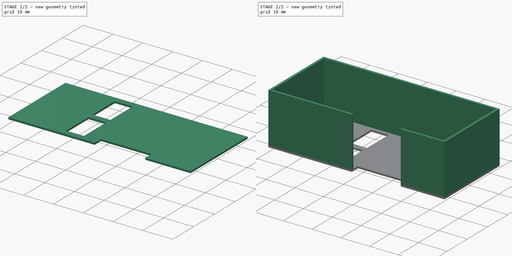
[diagram: build sequence overview — one tinted view per stage of 2, left to right]
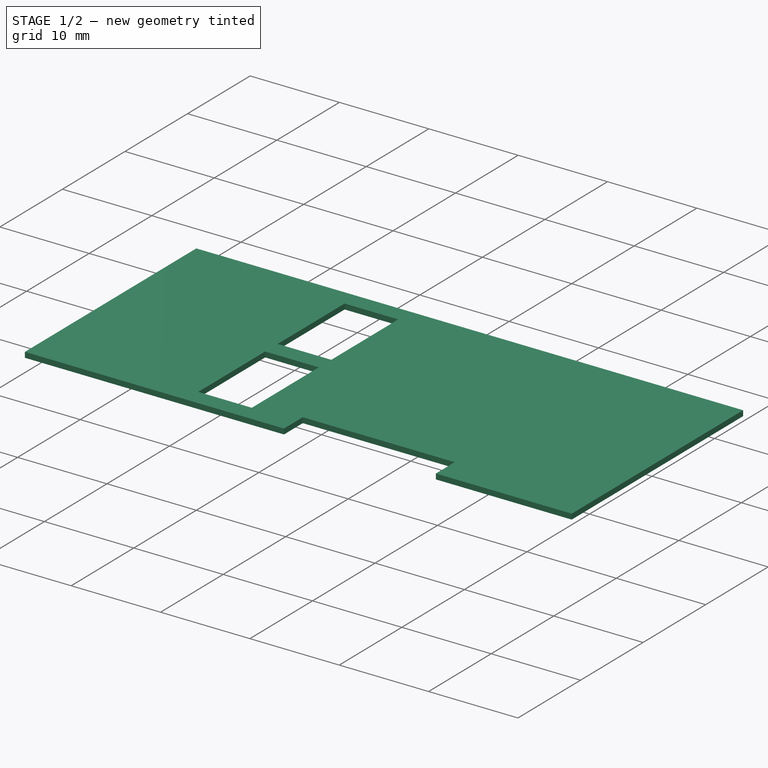
[diagram: stage 1 of 2 — iso view after this stage's code; geometry added in this stage tinted green]
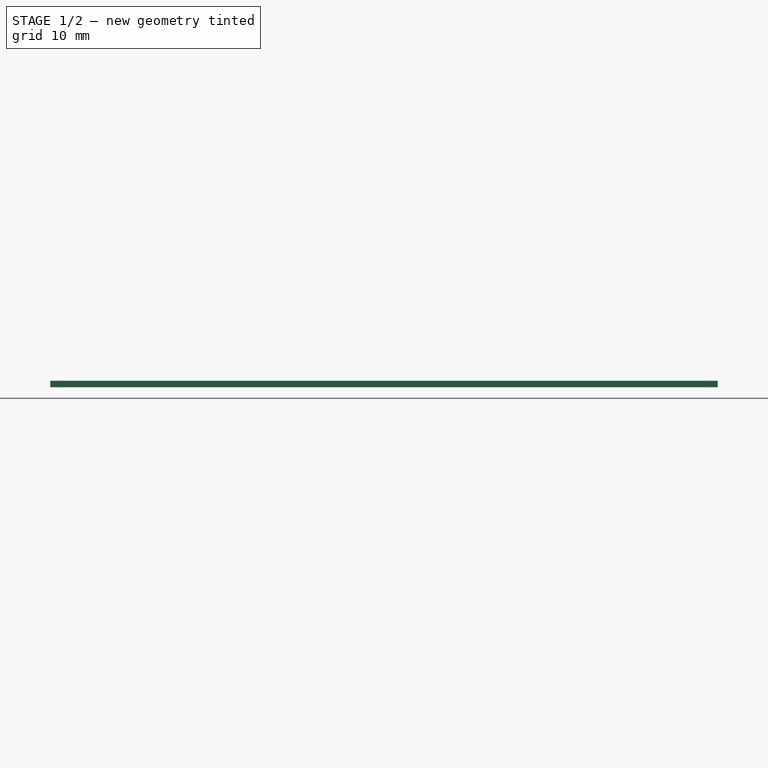
[diagram: stage 1 of 2 — front view after this stage's code; geometry added in this stage tinted green]
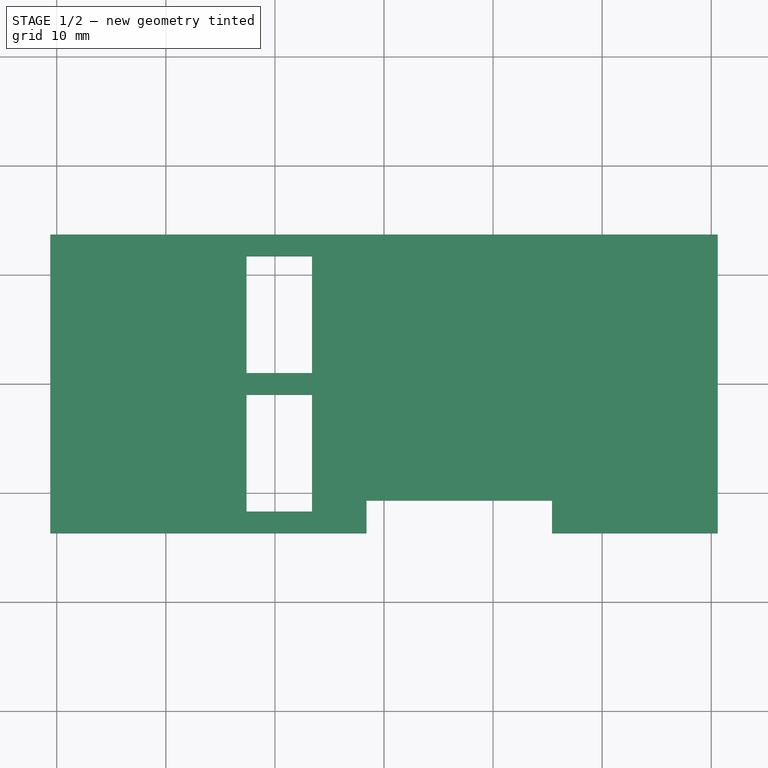
[diagram: stage 1 of 2 — top view after this stage's code; geometry added in this stage tinted green]
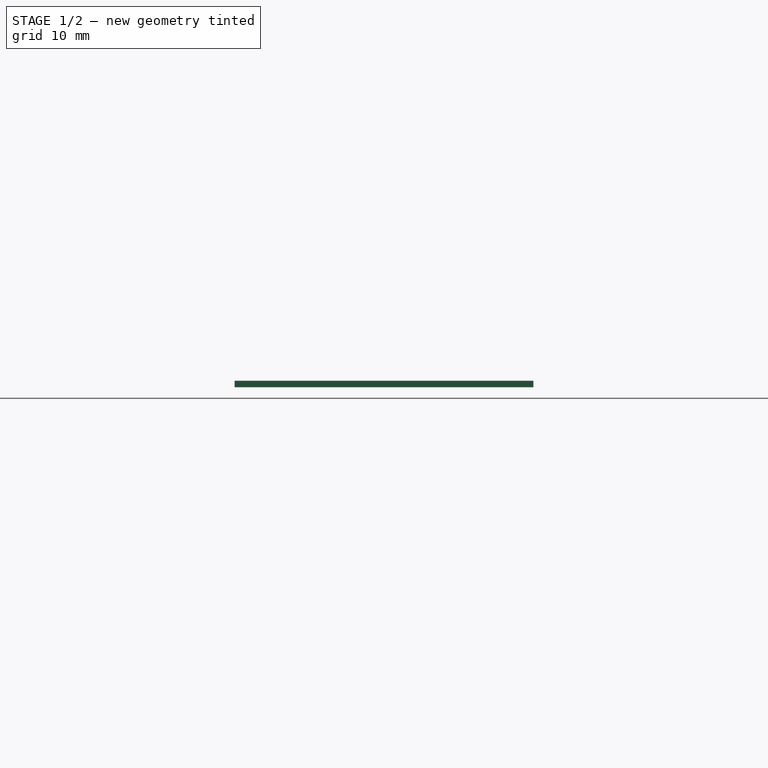
[diagram: stage 1 of 2 — right view after this stage's code; geometry added in this stage tinted green]
FCSTD DOCUMENT  (FreeCAD 0.20R29603 (Git))
Label: ulozak
License: All rights reserved
LicenseURL: http://en.wikipedia.org/wiki/All_rights_reserved
objects: Sketcher::SketchObject×2, PartDesign::Pad×2, PartDesign::Body×1
note: 7 computed .brp shape members not serialized (recipe doc carries the construction recipe); baked Part::Feature solids carry a one-line shape summary decoded from their .brp

FEATURE [Sketcher::SketchObject] Sketch
  FullyConstrained = false
  MapMode = 5
  Support = -> [XY_Plane]
  sketch-geometry (18):
    g0: LineSegment StartX=-30.6 StartY=13.7 StartZ=0 EndX=30.6 EndY=13.7 EndZ=0
    g1: LineSegment StartX=30.6 StartY=13.7 StartZ=0 EndX=30.6 EndY=-13.7 EndZ=0
    g2: LineSegment StartX=30.6 StartY=-13.7 StartZ=0 EndX=15.4 EndY=-13.7 EndZ=0
    g3: LineSegment StartX=-30.6 StartY=-13.7 StartZ=0 EndX=-30.6 EndY=13.7 EndZ=0
    g4: LineSegment StartX=-12.6 StartY=11.7 StartZ=0 EndX=-6.6 EndY=11.7 EndZ=0
    g5: LineSegment StartX=-6.6 StartY=11.7 StartZ=0 EndX=-6.6 EndY=1 EndZ=0
    g6: LineSegment StartX=-6.6 StartY=1 StartZ=0 EndX=-12.6 EndY=1 EndZ=0
    g7: LineSegment StartX=-12.6 StartY=1 StartZ=0 EndX=-12.6 EndY=11.7 EndZ=0
    g8: LineSegment StartX=-12.6 StartY=-1 StartZ=0 EndX=-6.6 EndY=-1 EndZ=0
    g9: LineSegment StartX=-6.6 StartY=-1 StartZ=0 EndX=-6.6 EndY=-11.7 EndZ=0
    g10: LineSegment StartX=-6.6 StartY=-11.7 StartZ=0 EndX=-12.6 EndY=-11.7 EndZ=0
    g11: LineSegment StartX=-12.6 StartY=-11.7 StartZ=0 EndX=-12.6 EndY=-1 EndZ=0
    g12: LineSegment StartX=-12.6 StartY=25.2129 StartZ=0 EndX=-12.6 EndY=-19.6466 EndZ=0
    g13: LineSegment StartX=-6.6 StartY=18.4086 StartZ=0 EndX=-6.6 EndY=-19.8265 EndZ=0
    g14: LineSegment StartX=-1.6 StartY=-13.7 StartZ=0 EndX=-1.6 EndY=-10.7 EndZ=0
    g15: LineSegment StartX=-1.6 StartY=-10.7 StartZ=0 EndX=15.4 EndY=-10.7 EndZ=0
    g16: LineSegment StartX=15.4 StartY=-10.7 StartZ=0 EndX=15.4 EndY=-13.7 EndZ=0
    g17: LineSegment StartX=-1.6 StartY=-13.7 StartZ=0 EndX=-30.6 EndY=-13.7 EndZ=0
  constraints (49):
    c: Coincident(g0,g1)
    c: Coincident(g1,g2)
    c: Coincident(g17,g3)
    c: Coincident(g3,g0)
    c: Horizontal(g0)
    c: Vertical(g1)
    c: Symmetric(g17,g1,g-2)
    c: Symmetric(g0,g17,g-1)
    c: DistanceY(g3,g3) = 27.4
    c: DistanceX(g17,g2) = 61.2
    c: Coincident(g4,g5)
    c: Coincident(g5,g6)
    c: Coincident(g6,g7)
    c: Coincident(g7,g4)
    c: Horizontal(g4)
    c: Horizontal(g6)
    c: Vertical(g5)
    c: Vertical(g7)
    c: Coincident(g8,g9)
    c: Coincident(g9,g10)
    c: Coincident(g10,g11)
    c: Coincident(g11,g8)
    c: Horizontal(g8)
    c: Horizontal(g10)
    c: Vertical(g9)
    c: Vertical(g11)
    c: DistanceX(g17,g10) = 18
    c: Vertical(g12)
    c: PointOnObject(g10,g12)
    c: PointOnObject(g6,g12)
    c: Vertical(g13)
    c: PointOnObject(g5,g13)
    c: DistanceX(g10,g10) = 6
    c: DistanceY(g4,g0) = 2
    c: DistanceY(g17,g10) = 2
    c: Symmetric(g5,g8,g-1)
    c: DistanceY(g8,g5) = 2
    c: Vertical(g14)
    c: Coincident(g14,g15)
    c: Horizontal(g15)
    c: Coincident(g15,g16)
    c: Vertical(g16)
    c: DistanceX(g17,g14) = 29
    c: DistanceX(g15,g15) = 17
    c: Coincident(g2,g16)
    c: Coincident(g17,g14)
    c: DistanceY(g16,g16) = 3
    c: Horizontal(g2)
    c: Horizontal(g17)
FEATURE [PartDesign::Pad] Pad
  Direction = (0,0,1)
  Length = 0.6
  Length2 = 10
  Profile = -> Sketch
  ReferenceAxis = -> Sketch [N_Axis]
  Type = 0
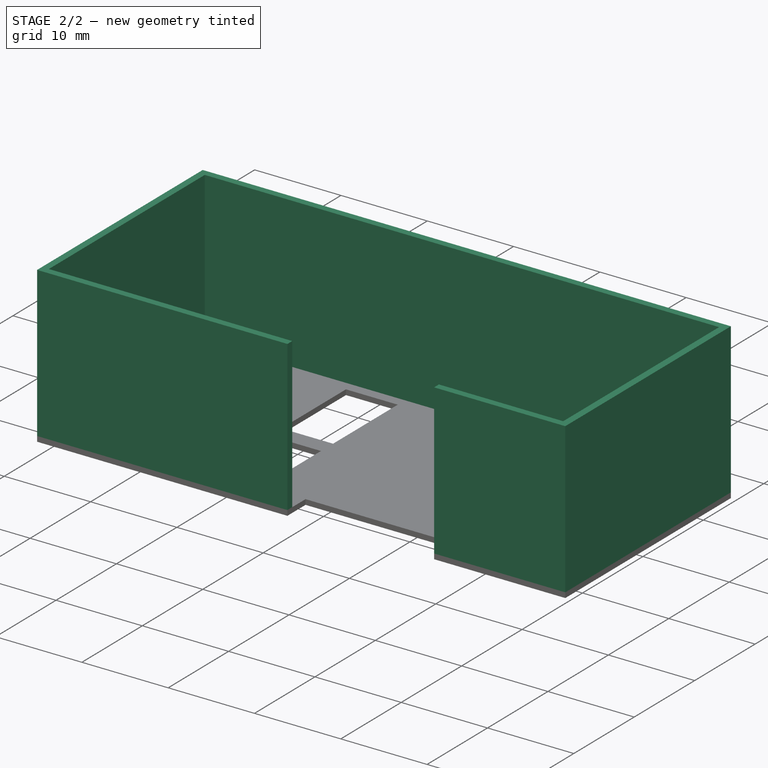
[diagram: stage 2 of 2 — iso view after this stage's code; geometry added in this stage tinted green]
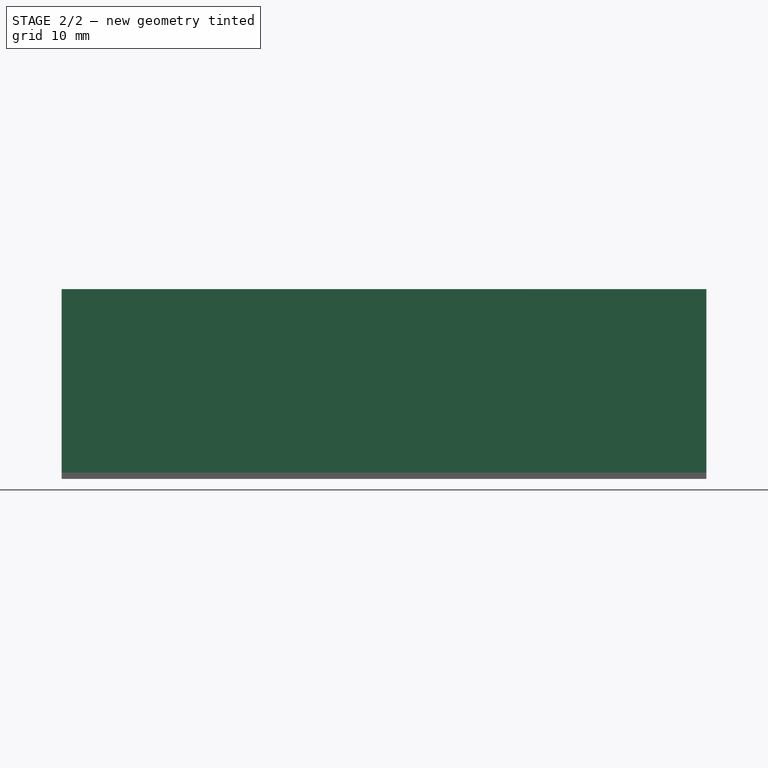
[diagram: stage 2 of 2 — front view after this stage's code; geometry added in this stage tinted green]
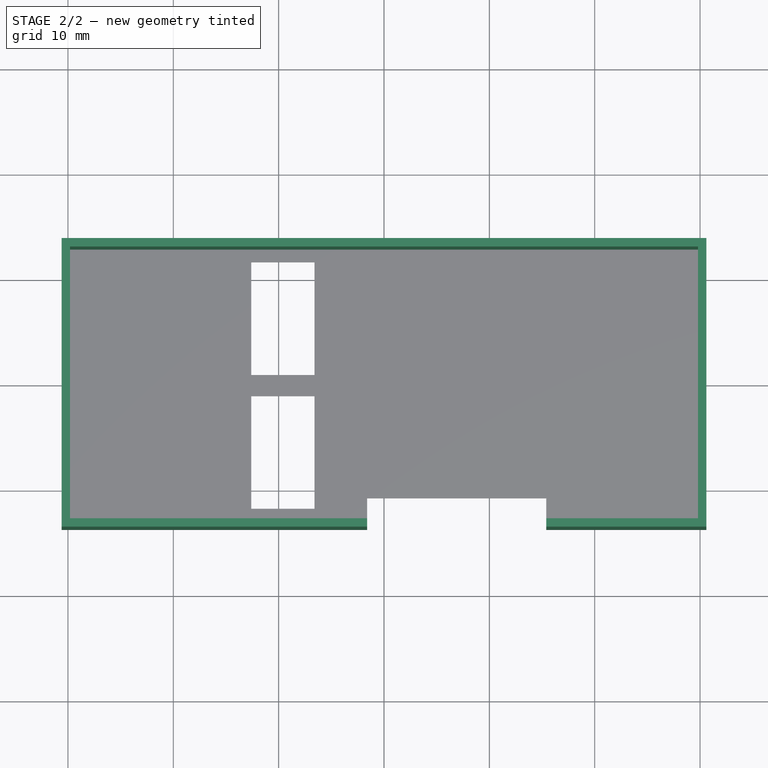
[diagram: stage 2 of 2 — top view after this stage's code; geometry added in this stage tinted green]
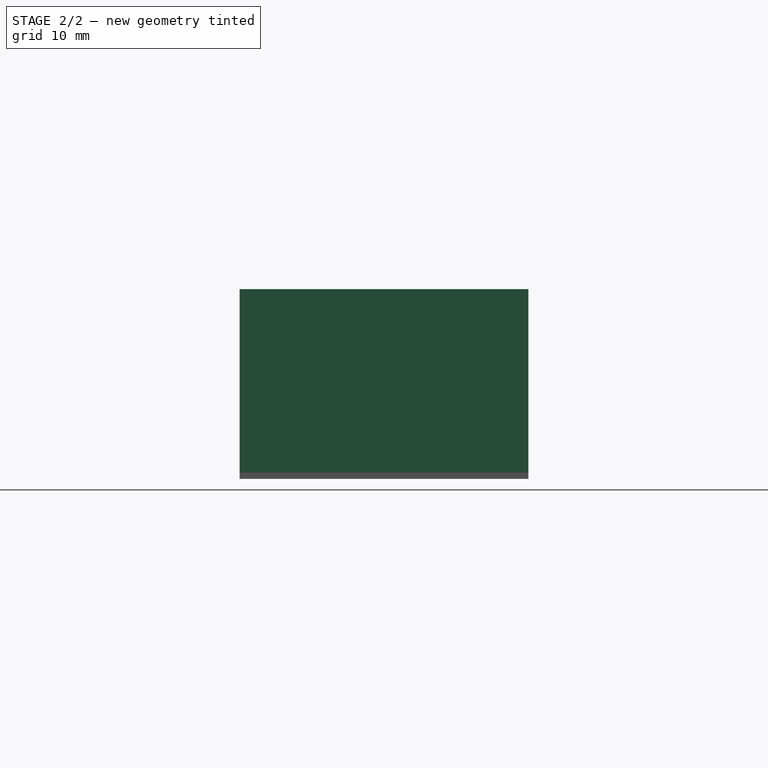
[diagram: stage 2 of 2 — right view after this stage's code; geometry added in this stage tinted green]
FEATURE [Sketcher::SketchObject] Sketch001
  FullyConstrained = true
  MapMode = 5
  Placement = pos=(0,0,0.6) rot=(0,0,1;0rad)
  Support = -> [Pad]
  sketch-geometry (13):
    g0: LineSegment StartX=-1.6 StartY=-12.9 StartZ=0 EndX=-29.8 EndY=-12.9 EndZ=0
    g1: LineSegment StartX=-29.8 StartY=-12.9 StartZ=0 EndX=-29.8 EndY=12.9 EndZ=0
    g2: LineSegment StartX=-29.8 StartY=12.9 StartZ=0 EndX=29.8 EndY=12.9 EndZ=0
    g3: LineSegment StartX=29.8 StartY=12.9 StartZ=0 EndX=29.8 EndY=-12.9 EndZ=0
    g4: LineSegment StartX=29.8 StartY=-12.9 StartZ=0 EndX=15.4 EndY=-12.9 EndZ=0
    g5: LineSegment StartX=15.4 StartY=-12.9 StartZ=0 EndX=15.4 EndY=-13.7 EndZ=0
    g6: LineSegment StartX=15.4 StartY=-13.7 StartZ=0 EndX=30.6 EndY=-13.7 EndZ=0
    g7: LineSegment StartX=30.6 StartY=-13.7 StartZ=0 EndX=30.6 EndY=13.7 EndZ=0
    g8: LineSegment StartX=30.6 StartY=13.7 StartZ=0 EndX=-30.6 EndY=13.7 EndZ=0
    g9: LineSegment StartX=-30.6 StartY=13.7 StartZ=0 EndX=-30.6 EndY=-13.7 EndZ=0
    g10: LineSegment StartX=-30.6 StartY=-13.7 StartZ=0 EndX=-1.6 EndY=-13.7 EndZ=0
    g11: LineSegment StartX=-1.6 StartY=-13.7 StartZ=0 EndX=-1.6 EndY=-12.9 EndZ=0
    g12: LineSegment StartX=-1.6 StartY=-13.7 StartZ=0 EndX=15.4 EndY=-13.7 EndZ=0
  constraints (36):
    c: Horizontal(g0)
    c: Coincident(g0,g1)
    c: Vertical(g1)
    c: Coincident(g1,g2)
    c: Horizontal(g2)
    c: Coincident(g2,g3)
    c: Vertical(g3)
    c: Coincident(g3,g4)
    c: Horizontal(g4)
    c: Coincident(g4,g5)
    c: Coincident(g5,g6)
    c: Horizontal(g6)
    c: Coincident(g6,g7)
    c: Vertical(g7)
    c: Coincident(g7,g8)
    c: Coincident(g8,g9)
    c: Coincident(g9,g10)
    c: Horizontal(g10)
    c: Coincident(g10,g11)
    c: Coincident(g11,g0)
    c: Vertical(g11)
    c: Symmetric(g9,g8,g-1)
    c: Symmetric(g8,g7,g-2)
    c: DistanceY(g9,g9) = 27.4
    c: DistanceX(g8,g8) = 61.2
    c: Equal(g11,g5)
    c: DistanceY(g11,g11) = 0.8
    c: DistanceX(g9,g0) = 0.8
    c: DistanceY(g1,g8) = 0.8
    c: DistanceX(g2,g7) = 0.8
    c: DistanceX(g10,g10) = 29
    c: DistanceX(g10,g5) = 17
    c: Vertical(g5)
    c: Coincident(g12,g10)
    c: Coincident(g12,g5)
    c: Horizontal(g12)
FEATURE [PartDesign::Pad] Pad001
  BaseFeature = -> Pad
  Direction = (0,0,1)
  Length = 17.4
  Length2 = 10
  Profile = -> Sketch001
  ReferenceAxis = -> Sketch001 [N_Axis]
  Type = 0
FEATURE [PartDesign::Body] Body
  Group = -> [Sketch,Pad,Sketch001,Pad001]
  Origin = -> Origin
  Tip = -> Pad001
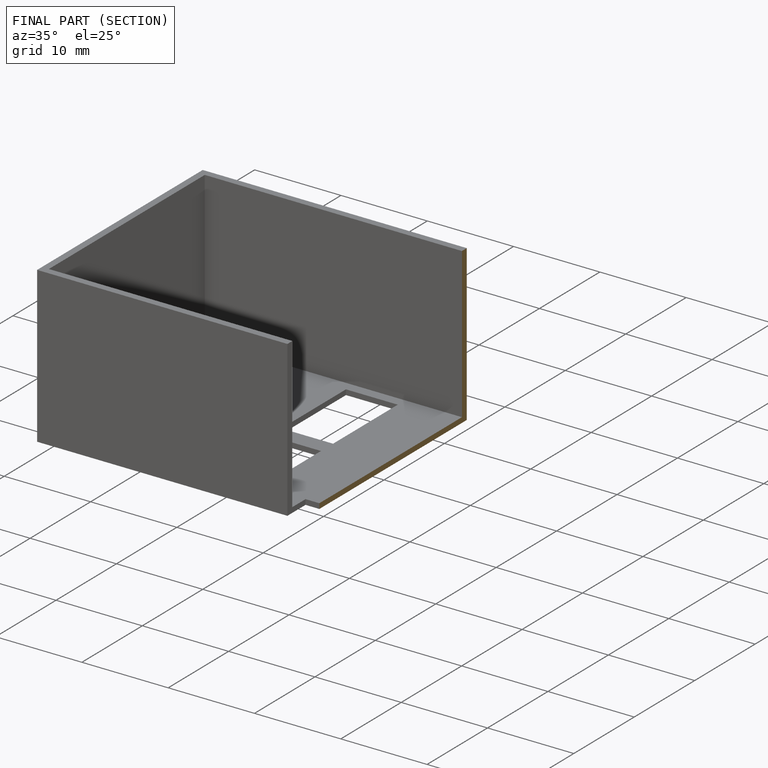
[diagram: finished part — half-section view (interior)]
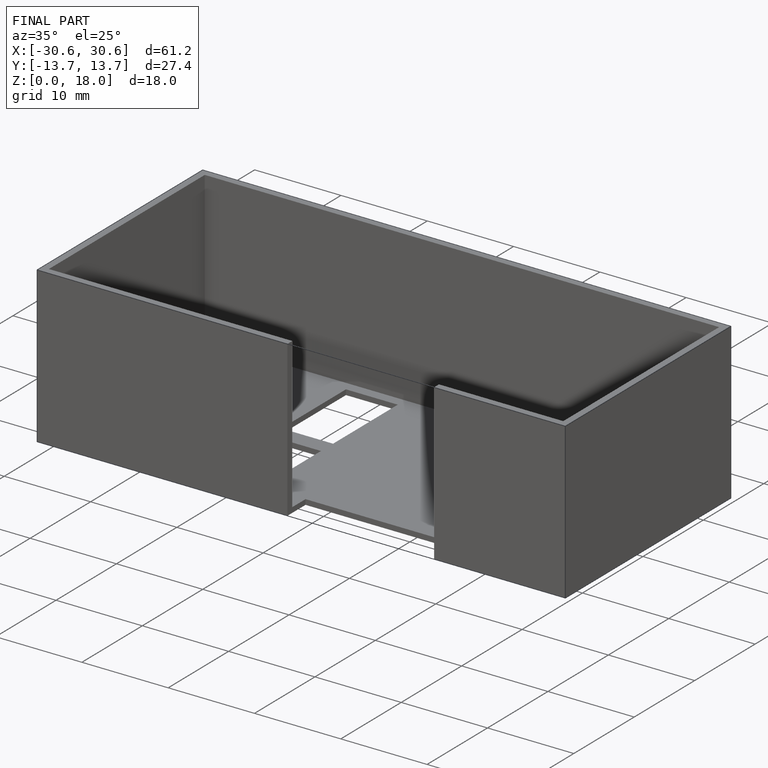
[diagram: finished part — iso view with bounding-box wireframe]
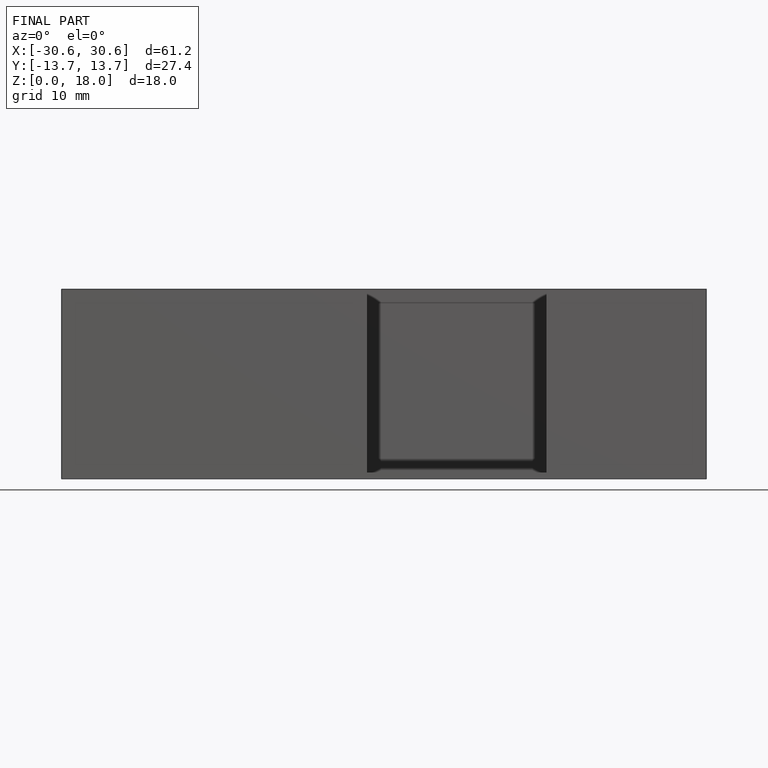
[diagram: finished part — front view with bounding-box wireframe]
